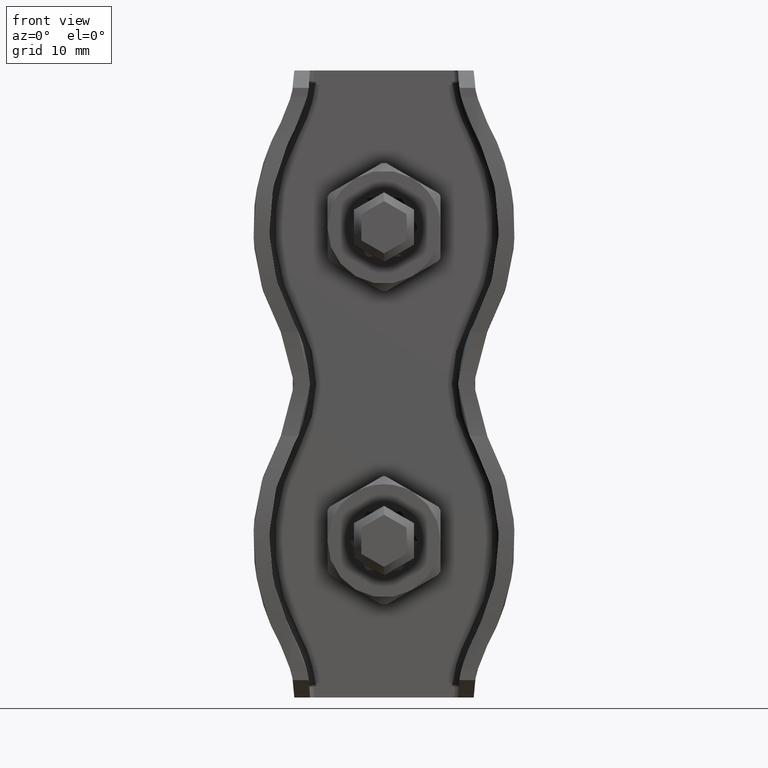
[diagram: clean part render]
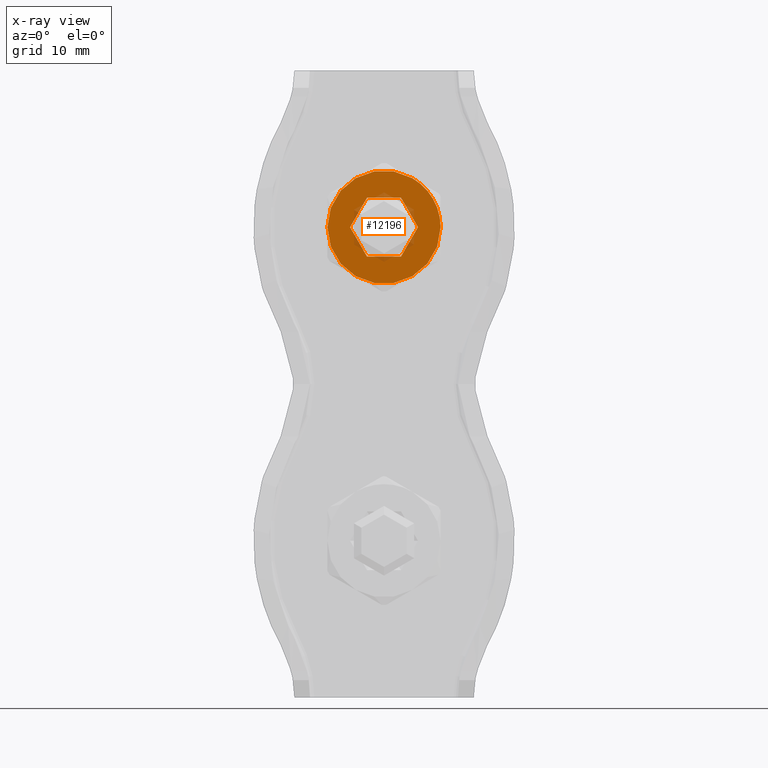
[diagram: x-ray — body ghosted, one internal face saturated and labeled with its STEP entity id]
A machine part, front view, then the same camera in x-ray: the body is ghosted and one INTERNAL B-rep face — a face not visible from any outside direction — is saturated and labeled: STEP entity #12196.
In plain terms, the highlighted planar face has unit normal (0, 1, 0).
Its self-contained STEP definition (entity closure, byte-faithful):
#88 = CARTESIAN_POINT ( 'NONE',  ( -1.563276670311591815E-15, 3.249999999999999556, -6.499999999999999112 ) ) ;
#559 = DIRECTION ( 'NONE',  ( 1.000000000000000000, 0.000000000000000000, 0.000000000000000000 ) ) ;
#606 = AXIS2_PLACEMENT_3D ( 'NONE', #2445, #15578, #2277 ) ;
#641 = DIRECTION ( 'NONE',  ( 1.875756048444083518E-17, -1.000000000000000000, -0.000000000000000000 ) ) ;
#996 = ORIENTED_EDGE ( 'NONE', *, *, #8507, .T. ) ;
#1563 = AXIS2_PLACEMENT_3D ( 'NONE', #17315, #641, #559 ) ;
#1604 = CIRCLE ( 'NONE', #4499, 3.900000000000000799 ) ;
#2277 = DIRECTION ( 'NONE',  ( 0.000000000000000000, 0.000000000000000000, 1.000000000000000000 ) ) ;
#2445 = CARTESIAN_POINT ( 'NONE',  ( -6.096207157443270972E-17, 3.250000000000000000, 2.111788106031385483E-16 ) ) ;
#2446 = VERTEX_POINT ( 'NONE', #8990 ) ;
#2450 = VERTEX_POINT ( 'NONE', #12696 ) ;
#2743 = DIRECTION ( 'NONE',  ( -0.000000000000000000, -1.000000000000000000, -0.000000000000000000 ) ) ;
#3166 = CARTESIAN_POINT ( 'NONE',  ( 0.000000000000000000, 3.250000000000000000, 0.000000000000000000 ) ) ;
#3282 = CIRCLE ( 'NONE', #606, 6.499999999999997335 ) ;
#3387 = AXIS2_PLACEMENT_3D ( 'NONE', #15195, #3880, #7793 ) ;
#3393 = VERTEX_POINT ( 'NONE', #23556 ) ;
#3628 = EDGE_CURVE ( 'NONE', #17566, #3393, #18211, .T. ) ;
#3748 = CIRCLE ( 'NONE', #12303, 6.499999999999997335 ) ;
#3880 = DIRECTION ( 'NONE',  ( -0.000000000000000000, -1.000000000000000000, -0.000000000000000000 ) ) ;
#4130 = VERTEX_POINT ( 'NONE', #88 ) ;
#4306 = AXIS2_PLACEMENT_3D ( 'NONE', #16821, #12724, #22319 ) ;
#4499 = AXIS2_PLACEMENT_3D ( 'NONE', #6307, #23376, #4509 ) ;
#4509 = DIRECTION ( 'NONE',  ( 0.000000000000000000, 0.000000000000000000, 1.000000000000000000 ) ) ;
#4814 = DIRECTION ( 'NONE',  ( 0.000000000000000000, 0.000000000000000000, 1.000000000000000000 ) ) ;
#4981 = CARTESIAN_POINT ( 'NONE',  ( 5.629165124598849879, 3.249999999999999556, -3.250000000000000888 ) ) ;
#4993 = AXIS2_PLACEMENT_3D ( 'NONE', #11856, #2743, #19287 ) ;
#5075 = EDGE_CURVE ( 'NONE', #3393, #2446, #19959, .T. ) ;
#5601 = ORIENTED_EDGE ( 'NONE', *, *, #8806, .F. ) ;
#6136 = ORIENTED_EDGE ( 'NONE', *, *, #17915, .F. ) ;
#6185 = VERTEX_POINT ( 'NONE', #8085 ) ;
#6307 = CARTESIAN_POINT ( 'NONE',  ( 0.000000000000000000, 3.250000000000000000, 0.000000000000000000 ) ) ;
#6478 = CIRCLE ( 'NONE', #15102, 6.499999999999997335 ) ;
#6650 = ORIENTED_EDGE ( 'NONE', *, *, #18986, .T. ) ;
#7651 = EDGE_CURVE ( 'NONE', #2446, #2450, #3282, .T. ) ;
#7734 = CIRCLE ( 'NONE', #3387, 6.499999999999997335 ) ;
#7754 = CIRCLE ( 'NONE', #4306, 6.499999999999997335 ) ;
#7793 = DIRECTION ( 'NONE',  ( 1.776356839400250465E-15, 0.000000000000000000, 1.000000000000000000 ) ) ;
#8085 = CARTESIAN_POINT ( 'NONE',  ( 4.776122516674679258E-16, 3.250000000000000000, -3.900000000000000799 ) ) ;
#8507 = EDGE_CURVE ( 'NONE', #6185, #22748, #12061, .T. ) ;
#8806 = EDGE_CURVE ( 'NONE', #16732, #17566, #6478, .T. ) ;
#8989 = DIRECTION ( 'NONE',  ( -0.000000000000000000, -1.000000000000000000, -0.000000000000000000 ) ) ;
#8990 = CARTESIAN_POINT ( 'NONE',  ( -5.629165124598850767, 3.249999999999999556, 3.249999999999999112 ) ) ;
#9094 = EDGE_LOOP ( 'NONE', ( #20470, #22071, #5601, #16415, #6136, #22839, #17368 ) ) ;
#10035 = CARTESIAN_POINT ( 'NONE',  ( 0.000000000000000000, 3.250000000000000000, 3.900000000000000799 ) ) ;
#10563 = DIRECTION ( 'NONE',  ( 0.000000000000000000, 1.000000000000000000, 0.000000000000000000 ) ) ;
#10881 = VERTEX_POINT ( 'NONE', #4981 ) ;
#11342 = AXIS2_PLACEMENT_3D ( 'NONE', #3166, #21907, #4814 ) ;
#11454 = DIRECTION ( 'NONE',  ( 4.440892098500626162E-15, 0.000000000000000000, 1.000000000000000000 ) ) ;
#11532 = EDGE_LOOP ( 'NONE', ( #6650, #996 ) ) ;
#11856 = CARTESIAN_POINT ( 'NONE',  ( -6.096207157443270972E-17, 3.250000000000000000, 2.111788106031385483E-16 ) ) ;
#12061 = CIRCLE ( 'NONE', #11342, 3.900000000000000799 ) ;
#12196 = ADVANCED_FACE ( 'NONE', ( #21409, #12595 ), #14472, .T. ) ;
#12303 = AXIS2_PLACEMENT_3D ( 'NONE', #24097, #8989, #22225 ) ;
#12335 = EDGE_CURVE ( 'NONE', #10881, #16732, #3748, .T. ) ;
#12595 = FACE_OUTER_BOUND ( 'NONE', #9094, .T. ) ;
#12696 = CARTESIAN_POINT ( 'NONE',  ( -5.629165124598850767, 3.249999999999999556, -3.249999999999998668 ) ) ;
#12724 = DIRECTION ( 'NONE',  ( -0.000000000000000000, -1.000000000000000000, -0.000000000000000000 ) ) ;
#13020 = CARTESIAN_POINT ( 'NONE',  ( -6.096207157443270972E-17, 3.250000000000000000, 2.111788106031385483E-16 ) ) ;
#13284 = CARTESIAN_POINT ( 'NONE',  ( 5.629165124598850767, 3.249999999999999556, 3.249999999999998668 ) ) ;
#14223 = DIRECTION ( 'NONE',  ( 0.000000000000000000, -0.000000000000000000, 1.000000000000000000 ) ) ;
#14472 = PLANE ( 'NONE',  #16562 ) ;
#14555 = CARTESIAN_POINT ( 'NONE',  ( 0.000000000000000000, 3.250000000000000000, 0.000000000000000000 ) ) ;
#15102 = AXIS2_PLACEMENT_3D ( 'NONE', #13020, #16886, #11454 ) ;
#15195 = CARTESIAN_POINT ( 'NONE',  ( -6.096207157443270972E-17, 3.250000000000000000, 2.111788106031385483E-16 ) ) ;
#15578 = DIRECTION ( 'NONE',  ( -0.000000000000000000, -1.000000000000000000, -0.000000000000000000 ) ) ;
#16415 = ORIENTED_EDGE ( 'NONE', *, *, #12335, .F. ) ;
#16562 = AXIS2_PLACEMENT_3D ( 'NONE', #14555, #10563, #14223 ) ;
#16732 = VERTEX_POINT ( 'NONE', #18281 ) ;
#16821 = CARTESIAN_POINT ( 'NONE',  ( -6.096207157443270972E-17, 3.250000000000000000, 2.111788106031385483E-16 ) ) ;
#16886 = DIRECTION ( 'NONE',  ( -0.000000000000000000, -1.000000000000000000, -0.000000000000000000 ) ) ;
#17315 = CARTESIAN_POINT ( 'NONE',  ( -6.096207157443270972E-17, 3.249999999999999556, 0.000000000000000000 ) ) ;
#17368 = ORIENTED_EDGE ( 'NONE', *, *, #7651, .F. ) ;
#17566 = VERTEX_POINT ( 'NONE', #13284 ) ;
#17915 = EDGE_CURVE ( 'NONE', #4130, #10881, #7754, .T. ) ;
#18211 = CIRCLE ( 'NONE', #1563, 6.499999999999999112 ) ;
#18281 = CARTESIAN_POINT ( 'NONE',  ( 6.499999999999997335, 3.250000000000000000, 2.407412430484044816E-32 ) ) ;
#18605 = EDGE_CURVE ( 'NONE', #2450, #4130, #7734, .T. ) ;
#18986 = EDGE_CURVE ( 'NONE', #22748, #6185, #1604, .T. ) ;
#19287 = DIRECTION ( 'NONE',  ( 0.000000000000000000, 0.000000000000000000, 1.000000000000000000 ) ) ;
#19959 = CIRCLE ( 'NONE', #4993, 6.499999999999997335 ) ;
#20470 = ORIENTED_EDGE ( 'NONE', *, *, #5075, .F. ) ;
#21409 = FACE_BOUND ( 'NONE', #11532, .T. ) ;
#21907 = DIRECTION ( 'NONE',  ( -0.000000000000000000, -1.000000000000000000, -0.000000000000000000 ) ) ;
#22071 = ORIENTED_EDGE ( 'NONE', *, *, #3628, .F. ) ;
#22225 = DIRECTION ( 'NONE',  ( 0.000000000000000000, 0.000000000000000000, 1.000000000000000000 ) ) ;
#22319 = DIRECTION ( 'NONE',  ( 0.000000000000000000, 0.000000000000000000, 1.000000000000000000 ) ) ;
#22748 = VERTEX_POINT ( 'NONE', #10035 ) ;
#22839 = ORIENTED_EDGE ( 'NONE', *, *, #18605, .F. ) ;
#23376 = DIRECTION ( 'NONE',  ( -0.000000000000000000, -1.000000000000000000, -0.000000000000000000 ) ) ;
#23556 = CARTESIAN_POINT ( 'NONE',  ( -6.096207157443269740E-17, 3.249999999999999556, 6.499999999999999112 ) ) ;
#24097 = CARTESIAN_POINT ( 'NONE',  ( -6.096207157443270972E-17, 3.250000000000000000, 2.111788106031385483E-16 ) ) ;